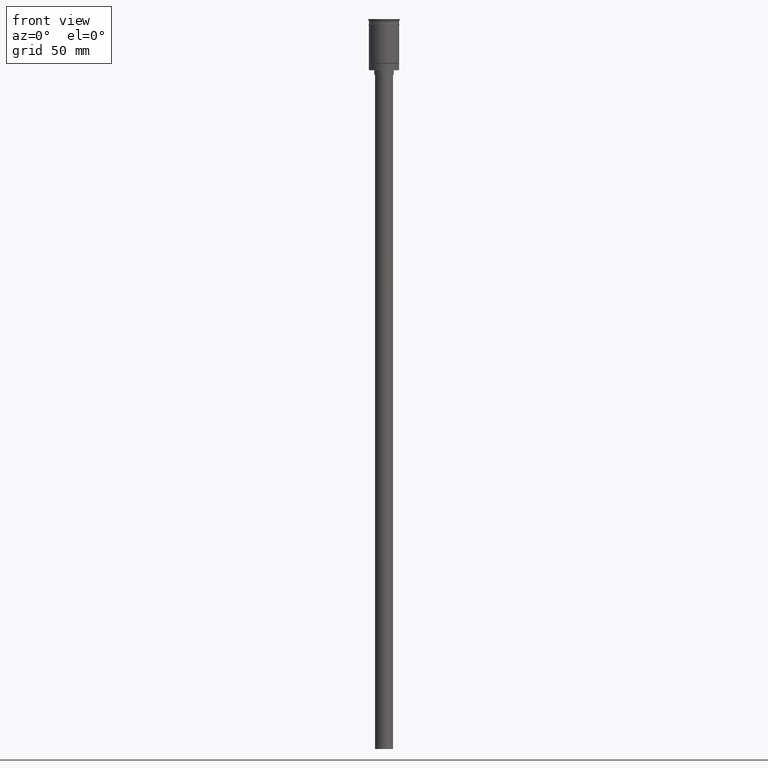
[diagram: clean part render]
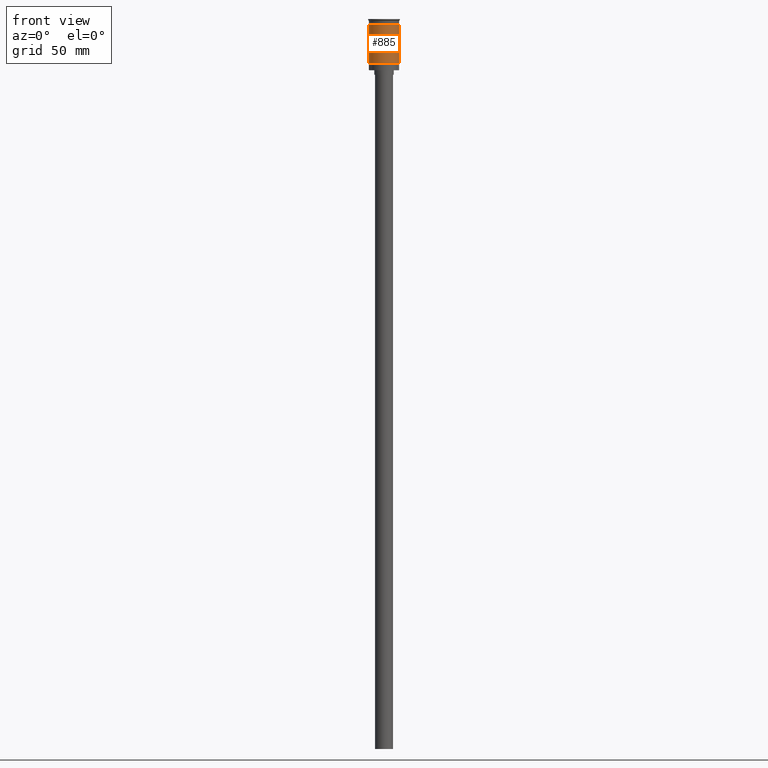
[diagram: same view with one face highlighted and labeled with its STEP entity id]
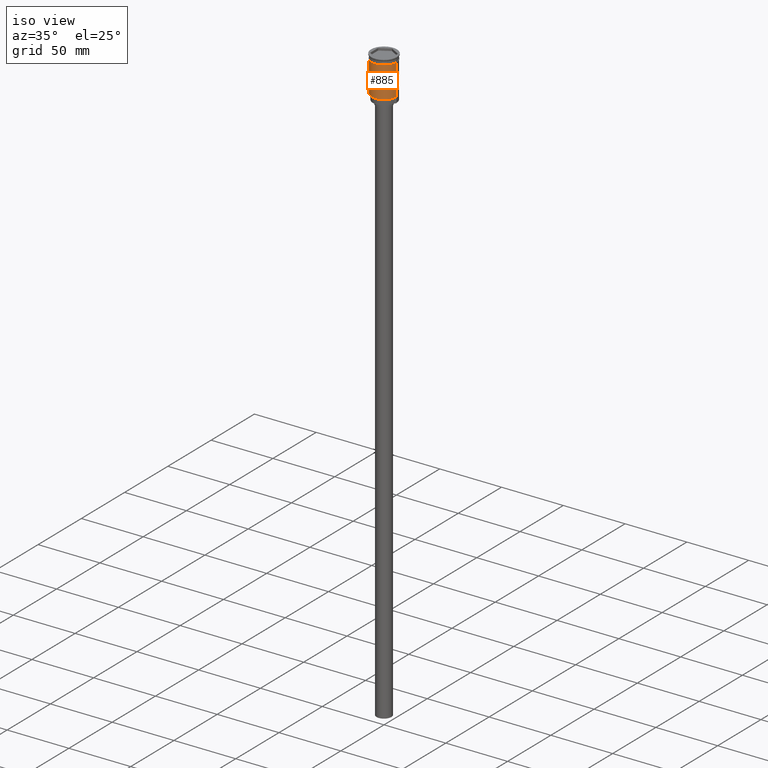
[diagram: same view with one face highlighted and labeled with its STEP entity id]
A machine part, front view. The second image highlights one B-rep face of the part: STEP entity #885.
A second angle (iso view) of the same face is appended — the face is thin or edge-on in the first view.
In plain terms, the highlighted cylindrical surface (edge-blend (fillet) strip) has radius 10 mm, axis along (-0, -0, 1).
Its self-contained STEP definition (entity closure, byte-faithful):
#59 = VERTEX_POINT ( 'NONE', #1189 ) ;
#64 = DIRECTION ( 'NONE',  ( -0.000000000000000000, -0.000000000000000000, 1.000000000000000000 ) ) ;
#65 = ORIENTED_EDGE ( 'NONE', *, *, #1103, .F. ) ;
#76 = FACE_OUTER_BOUND ( 'NONE', #1080, .T. ) ;
#93 = EDGE_CURVE ( 'NONE', #223, #608, #1148, .T. ) ;
#161 = EDGE_CURVE ( 'NONE', #608, #457, #1107, .T. ) ;
#223 = VERTEX_POINT ( 'NONE', #838 ) ;
#224 = AXIS2_PLACEMENT_3D ( 'NONE', #1254, #267, #893 ) ;
#226 = DIRECTION ( 'NONE',  ( -0.000000000000000000, -0.000000000000000000, 1.000000000000000000 ) ) ;
#267 = DIRECTION ( 'NONE',  ( -0.000000000000000000, -0.000000000000000000, 1.000000000000000000 ) ) ;
#314 = CARTESIAN_POINT ( 'NONE',  ( 0.000000000000000000, 0.000000000000000000, 0.000000000000000000 ) ) ;
#451 = AXIS2_PLACEMENT_3D ( 'NONE', #1037, #226, #1083 ) ;
#457 = VERTEX_POINT ( 'NONE', #1242 ) ;
#465 = CARTESIAN_POINT ( 'NONE',  ( 9.999999999999994671, 0.000000000000000000, 0.000000000000000000 ) ) ;
#567 = LINE ( 'NONE', #1068, #1364 ) ;
#596 = CIRCLE ( 'NONE', #224, 9.999999999999998224 ) ;
#608 = VERTEX_POINT ( 'NONE', #1448 ) ;
#838 = CARTESIAN_POINT ( 'NONE',  ( -9.999999999999991118, 0.000000000000000000, -29.30000000000000071 ) ) ;
#885 = ADVANCED_FACE ( 'NONE', ( #76 ), #1563, .T. ) ;
#893 = DIRECTION ( 'NONE',  ( 1.000000000000000000, 0.000000000000000000, 0.000000000000000000 ) ) ;
#934 = DIRECTION ( 'NONE',  ( -0.000000000000000000, -0.000000000000000000, 1.000000000000000000 ) ) ;
#949 = DIRECTION ( 'NONE',  ( 1.000000000000000000, 0.000000000000000000, 0.000000000000000000 ) ) ;
#1037 = CARTESIAN_POINT ( 'NONE',  ( 0.000000000000000000, 0.000000000000000000, -29.30000000000000071 ) ) ;
#1068 = CARTESIAN_POINT ( 'NONE',  ( -9.999999999999994671, 1.224646799147352665E-15, 0.000000000000000000 ) ) ;
#1080 = EDGE_LOOP ( 'NONE', ( #1535, #1233, #1327, #65 ) ) ;
#1083 = DIRECTION ( 'NONE',  ( -1.000000000000000000, 0.000000000000000000, 0.000000000000000000 ) ) ;
#1103 = EDGE_CURVE ( 'NONE', #59, #457, #596, .T. ) ;
#1107 = LINE ( 'NONE', #465, #1393 ) ;
#1148 = CIRCLE ( 'NONE', #451, 9.999999999999994671 ) ;
#1189 = CARTESIAN_POINT ( 'NONE',  ( -10.00000000000000000, 1.224646799147353256E-15, -3.999999999999996447 ) ) ;
#1233 = ORIENTED_EDGE ( 'NONE', *, *, #93, .T. ) ;
#1242 = CARTESIAN_POINT ( 'NONE',  ( 9.999999999999998224, 0.000000000000000000, -3.999999999999996447 ) ) ;
#1254 = CARTESIAN_POINT ( 'NONE',  ( 0.000000000000000000, 0.000000000000000000, -3.999999999999996447 ) ) ;
#1259 = AXIS2_PLACEMENT_3D ( 'NONE', #314, #64, #949 ) ;
#1327 = ORIENTED_EDGE ( 'NONE', *, *, #161, .T. ) ;
#1364 = VECTOR ( 'NONE', #934, 1000.000000000000000 ) ;
#1393 = VECTOR ( 'NONE', #1579, 1000.000000000000000 ) ;
#1448 = CARTESIAN_POINT ( 'NONE',  ( 9.999999999999994671, 1.224646799147352665E-15, -29.30000000000000071 ) ) ;
#1530 = EDGE_CURVE ( 'NONE', #223, #59, #567, .T. ) ;
#1535 = ORIENTED_EDGE ( 'NONE', *, *, #1530, .F. ) ;
#1563 = CYLINDRICAL_SURFACE ( 'NONE', #1259, 9.999999999999994671 ) ;
#1579 = DIRECTION ( 'NONE',  ( -0.000000000000000000, -0.000000000000000000, 1.000000000000000000 ) ) ;